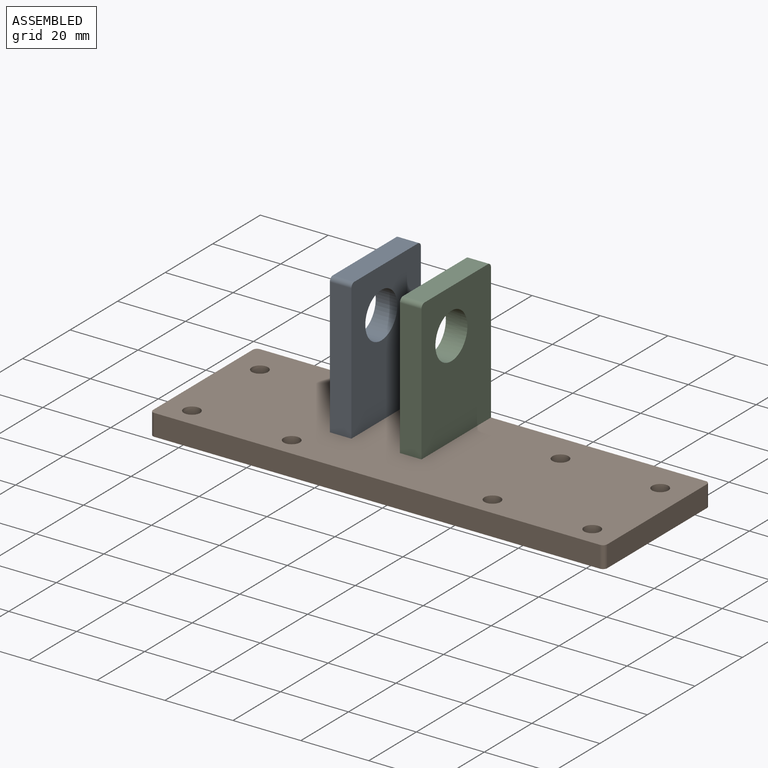
[diagram: assembled view]
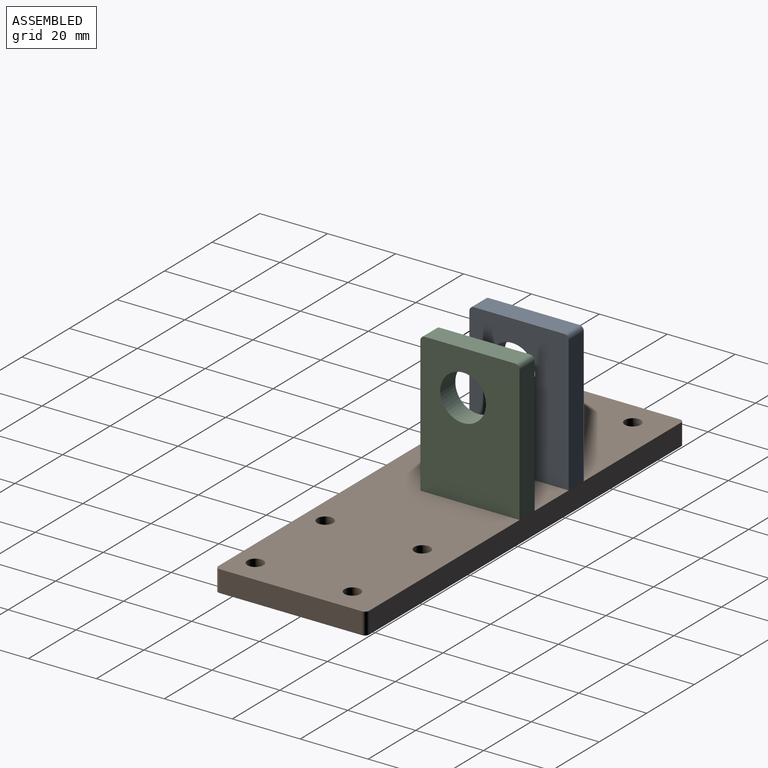
[diagram: assembled view, second angle]
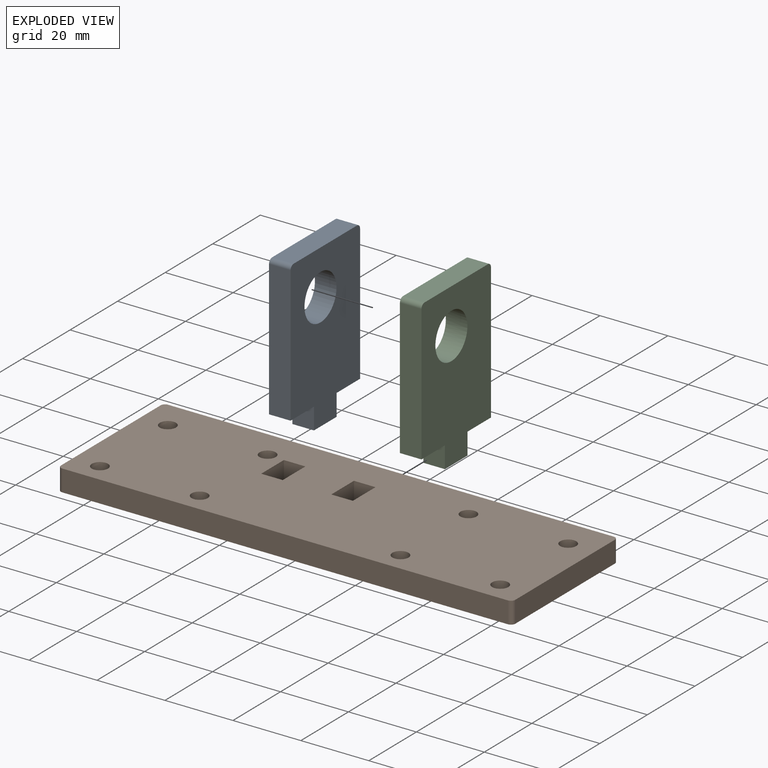
[diagram: exploded view]
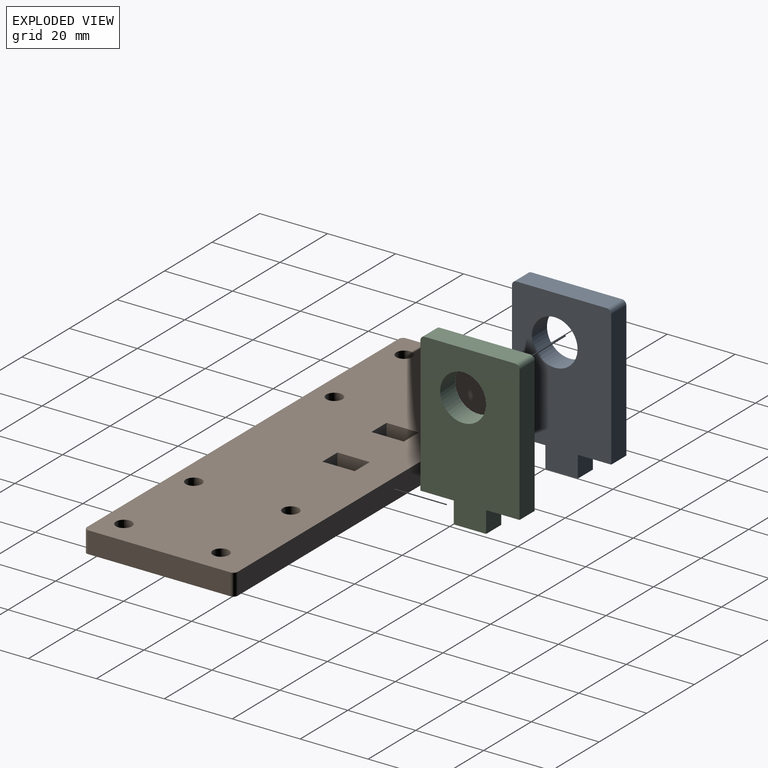
[diagram: exploded view, second angle]
ASSEMBLY  parts=3 mates=2
PART A: 13 faces, bbox 6.4x29.2x47.6 mm
  f0: plane 9.53x6.35mm, normal (0,0,-1), area 60.5mm2, adj f3,f4,f7,f9
  f1: plane 26.67x6.35mm, normal (0,0,1), area 169.4mm2, adj f3,f4,f11,f12
  f2: plane 40.01x6.35mm, normal (0,-1,0), area 254mm2, adj f3,f4,f8,f11
  f3: plane 47.63x29.21mm, normal (1,0,0), area 1123.1mm2, adj f0,f1,f2,f5,f6,f7,f8,f9
  f4: plane 47.63x29.21mm, normal (-1,0,0), area 1123.1mm2, adj f0,f1,f2,f5,f6,f7,f8,f9
  f5: plane 40.01x6.35mm, normal (0,1,0), area 254mm2, adj f3,f4,f6,f12
  f6: plane 9.84x6.35mm, normal (0,0,-1), area 62.5mm2, adj f3,f4,f5,f7
  f7: plane 6.35x6.35mm, normal (0,1,0), area 40.3mm2, adj f0,f3,f4,f6
  f8: plane 9.84x6.35mm, normal (0,0,-1), area 62.5mm2, adj f2,f3,f4,f9
  f9: plane 6.35x6.35mm, normal (0,-1,0), area 40.3mm2, adj f0,f3,f4,f8
  f10: cylinder r=6.73mm len=13.46mm, axis (-1,0,0), area 268.6mm2, adj f3,f4
  f11: cylinder r=1.27mm len=6.35mm, axis (-1,0,0), area 12.7mm2, adj f1,f2,f3,f4
  f12: cylinder r=1.27mm len=6.35mm, axis (1,0,0), area 12.7mm2, adj f1,f3,f4,f5
PART B: 26 faces, bbox 133.7x44.5x6.4 mm
  f0: plane 9.53x6.35mm, normal (-1,0,0), area 60.5mm2, adj f1,f20,f24,f25
  f1: plane 6.35x6.35mm, normal (0,1,0), area 40.3mm2, adj f0,f2,f24,f25
  f2: plane 9.53x6.35mm, normal (1,0,0), area 60.5mm2, adj f1,f20,f24,f25
  f3: cylinder r=1.27mm len=6.35mm, axis (0,0,-1), area 12.7mm2, adj f4,f21,f24,f25
  f4: plane 131.19x6.35mm, normal (0,1,0), area 833.1mm2, adj f3,f5,f24,f25
  f5: cylinder r=1.27mm len=6.35mm, axis (0,0,-1), area 12.7mm2, adj f4,f6,f24,f25
  f6: plane 41.91x6.35mm, normal (-1,0,0), area 266.1mm2, adj f5,f7,f24,f25
  f7: cylinder r=1.27mm len=6.35mm, axis (0,0,-1), area 12.7mm2, adj f6,f8,f24,f25
  f8: plane 131.19x6.35mm, normal (0,-1,0), area 833.1mm2, adj f7,f9,f24,f25
  f9: cylinder r=1.27mm len=6.35mm, axis (0,0,-1), area 12.7mm2, adj f8,f21,f24,f25
  f10: plane 9.53x6.35mm, normal (-1,0,0), area 60.5mm2, adj f11,f22,f24,f25
  f11: plane 6.35x6.35mm, normal (0,1,0), area 40.3mm2, adj f10,f12,f24,f25
  f12: plane 9.53x6.35mm, normal (1,0,0), area 60.5mm2, adj f11,f22,f24,f25
  f13: cylinder r=2.38mm len=6.35mm, axis (0,0,-1), area 95mm2, adj f24,f25
  f14: cylinder r=2.38mm len=6.35mm, axis (0,0,-1), area 95mm2, adj f24,f25
  f15: cylinder r=2.38mm len=6.35mm, axis (0,0,-1), area 95mm2, adj f24,f25
  f16: cylinder r=2.38mm len=6.35mm, axis (0,0,-1), area 95mm2, adj f24,f25
  f17: cylinder r=2.38mm len=6.35mm, axis (0,0,-1), area 95mm2, adj f24,f25
  f18: cylinder r=2.38mm len=6.35mm, axis (0,0,-1), area 95mm2, adj f24,f25
  f19: cylinder r=2.38mm len=6.35mm, axis (0,0,-1), area 95mm2, adj f24,f25
  f20: plane 6.35x6.35mm, normal (0,-1,0), area 40.3mm2, adj f0,f2,f24,f25
  f21: plane 41.91x6.35mm, normal (1,0,0), area 266.1mm2, adj f3,f9,f24,f25
  f22: plane 6.35x6.35mm, normal (0,-1,0), area 40.3mm2, adj f10,f12,f24,f25
  f23: cylinder r=2.38mm len=6.35mm, axis (0,0,-1), area 95mm2, adj f24,f25
  f24: plane 133.73x44.45mm, normal (0,0,1), area 5679.5mm2, adj f0,f1,f2,f3,f4,f5,f6,f7
  f25: plane 133.73x44.45mm, normal (0,0,-1), area 5679.5mm2, adj f0,f1,f2,f3,f4,f5,f6,f7
PART C: 13 faces, bbox 6.4x29.2x47.6 mm
  f0: plane 40.01x6.35mm, normal (0,1,0), area 254mm2, adj f3,f5,f6,f11
  f1: plane 9.53x6.35mm, normal (0,0,-1), area 60.5mm2, adj f3,f5,f7,f9
  f2: plane 26.67x6.35mm, normal (0,0,1), area 169.4mm2, adj f3,f5,f11,f12
  f3: plane 47.63x29.21mm, normal (-1,0,0), area 1123.1mm2, adj f0,f1,f2,f4,f6,f7,f8,f9
  f4: plane 40.01x6.35mm, normal (0,-1,0), area 254mm2, adj f3,f5,f8,f12
  f5: plane 47.63x29.21mm, normal (1,0,0), area 1123.1mm2, adj f0,f1,f2,f4,f6,f7,f8,f9
  f6: plane 9.84x6.35mm, normal (0,0,-1), area 62.5mm2, adj f0,f3,f5,f7
  f7: plane 6.35x6.35mm, normal (0,1,0), area 40.3mm2, adj f1,f3,f5,f6
  f8: plane 9.84x6.35mm, normal (0,0,-1), area 62.5mm2, adj f3,f4,f5,f9
  f9: plane 6.35x6.35mm, normal (0,-1,0), area 40.3mm2, adj f1,f3,f5,f8
  f10: cylinder r=6.73mm len=13.46mm, axis (-1,0,0), area 268.6mm2, adj f3,f5
  f11: cylinder r=1.27mm len=6.35mm, axis (1,0,0), area 12.7mm2, adj f0,f2,f3,f5
  f12: cylinder r=1.27mm len=6.35mm, axis (-1,0,0), area 12.7mm2, adj f2,f3,f4,f5
PLACE A at identity
PLACE B at identity
PLACE C at identity
MATE fastened C.f1 <-> B.f25  axis (0,0,-1) through (-0.79,7.62,0)mm
MATE fastened A.f0 <-> B.f25  axis (0,0,-1) through (-21.43,7.62,0)mm
